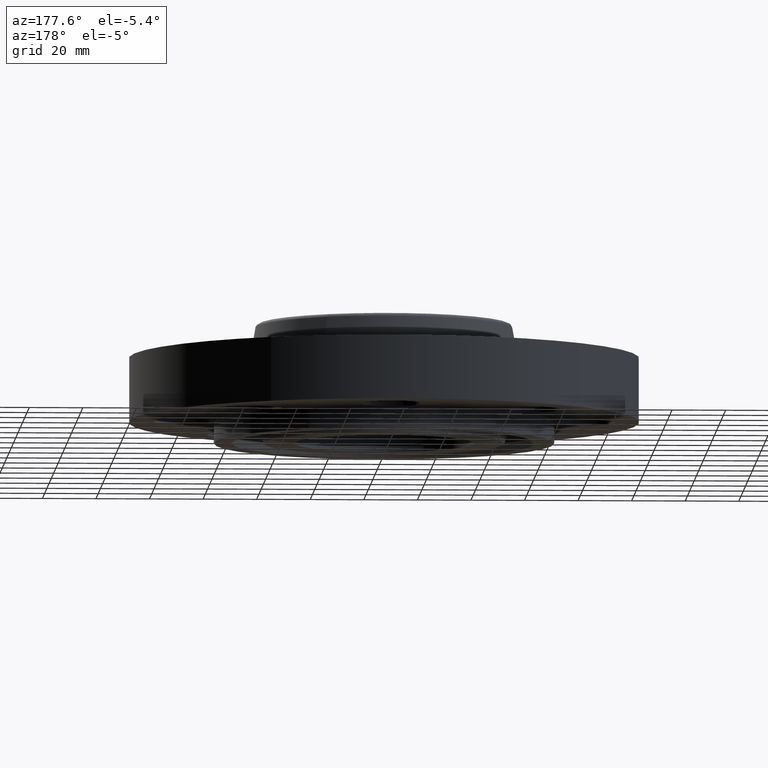
[diagram: clean part render]
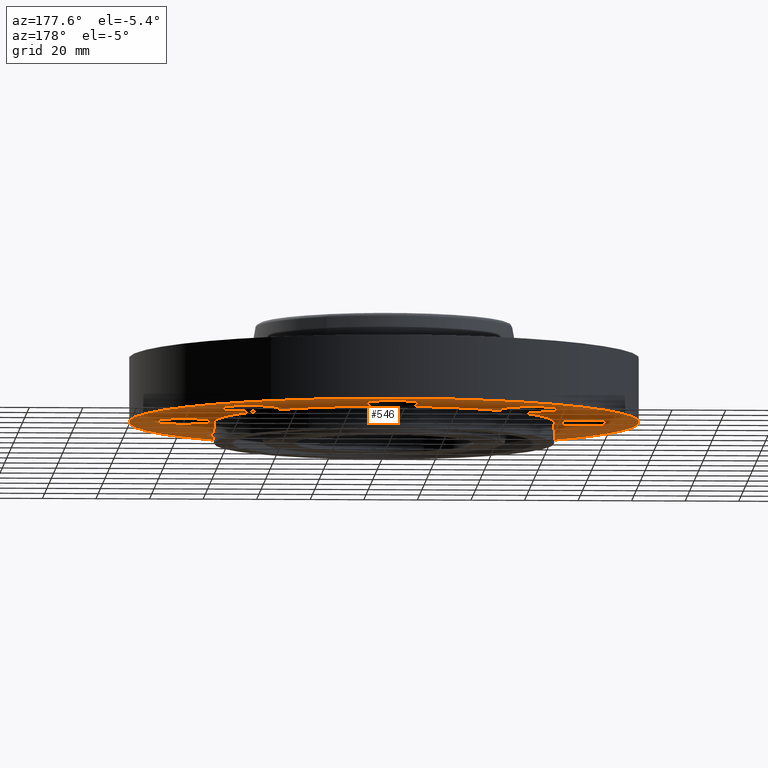
[diagram: same view with one face highlighted and labeled with its STEP entity id]
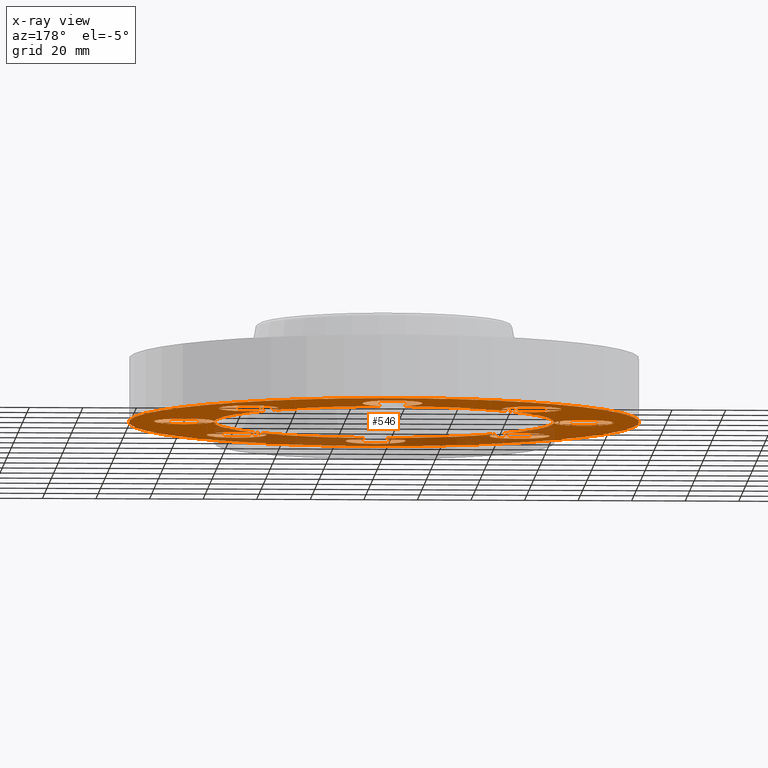
[diagram: x-ray of the same camera — body ghosted, the highlighted face saturated]
A machine part, auxiliary view. The second image highlights one B-rep face of the part: STEP entity #546.
The next image is the same camera in x-ray: the body ghosted, the highlighted face saturated — about 29% of this face is hidden behind the body in this view.
In plain terms, the highlighted planar face has unit normal (0, 0, -1).
Its self-contained STEP definition (entity closure, byte-faithful):
#242=AXIS2_PLACEMENT_3D('Circle Axis2P3D',#240,#241,$) ;
#249=AXIS2_PLACEMENT_3D('Circle Axis2P3D',#247,#248,$) ;
#256=AXIS2_PLACEMENT_3D('Circle Axis2P3D',#254,#255,$) ;
#263=AXIS2_PLACEMENT_3D('Circle Axis2P3D',#261,#262,$) ;
#270=AXIS2_PLACEMENT_3D('Circle Axis2P3D',#268,#269,$) ;
#293=AXIS2_PLACEMENT_3D('Circle Axis2P3D',#291,#292,$) ;
#300=AXIS2_PLACEMENT_3D('Circle Axis2P3D',#298,#299,$) ;
#307=AXIS2_PLACEMENT_3D('Circle Axis2P3D',#305,#306,$) ;
#314=AXIS2_PLACEMENT_3D('Circle Axis2P3D',#312,#313,$) ;
#321=AXIS2_PLACEMENT_3D('Circle Axis2P3D',#319,#320,$) ;
#338=AXIS2_PLACEMENT_3D('Plane Axis2P3D',#335,#336,#337) ;
#342=AXIS2_PLACEMENT_3D('Circle Axis2P3D',#340,#341,$) ;
#351=AXIS2_PLACEMENT_3D('Circle Axis2P3D',#349,#350,$) ;
#360=AXIS2_PLACEMENT_3D('Circle Axis2P3D',#358,#359,$) ;
#367=AXIS2_PLACEMENT_3D('Circle Axis2P3D',#365,#366,$) ;
#374=AXIS2_PLACEMENT_3D('Circle Axis2P3D',#372,#373,$) ;
#379=AXIS2_PLACEMENT_3D('Circle Axis2P3D',#377,#378,$) ;
#386=AXIS2_PLACEMENT_3D('Circle Axis2P3D',#384,#385,$) ;
#393=AXIS2_PLACEMENT_3D('Circle Axis2P3D',#391,#392,$) ;
#398=AXIS2_PLACEMENT_3D('Circle Axis2P3D',#396,#397,$) ;
#405=AXIS2_PLACEMENT_3D('Circle Axis2P3D',#403,#404,$) ;
#412=AXIS2_PLACEMENT_3D('Circle Axis2P3D',#410,#411,$) ;
#417=AXIS2_PLACEMENT_3D('Circle Axis2P3D',#415,#416,$) ;
#424=AXIS2_PLACEMENT_3D('Circle Axis2P3D',#422,#423,$) ;
#431=AXIS2_PLACEMENT_3D('Circle Axis2P3D',#429,#430,$) ;
#436=AXIS2_PLACEMENT_3D('Circle Axis2P3D',#434,#435,$) ;
#443=AXIS2_PLACEMENT_3D('Circle Axis2P3D',#441,#442,$) ;
#450=AXIS2_PLACEMENT_3D('Circle Axis2P3D',#448,#449,$) ;
#455=AXIS2_PLACEMENT_3D('Circle Axis2P3D',#453,#454,$) ;
#462=AXIS2_PLACEMENT_3D('Circle Axis2P3D',#460,#461,$) ;
#469=AXIS2_PLACEMENT_3D('Circle Axis2P3D',#467,#468,$) ;
#474=AXIS2_PLACEMENT_3D('Circle Axis2P3D',#472,#473,$) ;
#481=AXIS2_PLACEMENT_3D('Circle Axis2P3D',#479,#480,$) ;
#488=AXIS2_PLACEMENT_3D('Circle Axis2P3D',#486,#487,$) ;
#493=AXIS2_PLACEMENT_3D('Circle Axis2P3D',#491,#492,$) ;
#500=AXIS2_PLACEMENT_3D('Circle Axis2P3D',#498,#499,$) ;
#507=AXIS2_PLACEMENT_3D('Circle Axis2P3D',#505,#506,$) ;
#237=CARTESIAN_POINT('Vertex',(-1.19856384652,-2.19395640473,1.39870617276E-016)) ;
#240=CARTESIAN_POINT('Axis2P3D Location',(0.,0.,2.79741234551E-016)) ;
#244=CARTESIAN_POINT('Vertex',(-1.76776695297,-1.76776695297,0.)) ;
#247=CARTESIAN_POINT('Axis2P3D Location',(0.,0.,2.79741234551E-016)) ;
#251=CARTESIAN_POINT('Vertex',(-2.50000000001,-8.39223703654E-016,0.)) ;
#254=CARTESIAN_POINT('Axis2P3D Location',(0.,0.,2.79741234551E-016)) ;
#258=CARTESIAN_POINT('Vertex',(-1.76776695297,1.76776695297,0.)) ;
#261=CARTESIAN_POINT('Axis2P3D Location',(0.,0.,2.79741234551E-016)) ;
#265=CARTESIAN_POINT('Vertex',(7.81021824778E-015,2.50000000001,2.79741234551E-016)) ;
#268=CARTESIAN_POINT('Axis2P3D Location',(0.,0.,2.79741234551E-016)) ;
#272=CARTESIAN_POINT('Vertex',(1.19856384652,2.19395640473,1.39870617276E-016)) ;
#291=CARTESIAN_POINT('Axis2P3D Location',(0.,0.,2.79741234551E-016)) ;
#295=CARTESIAN_POINT('Vertex',(1.76776695297,1.76776695297,0.)) ;
#298=CARTESIAN_POINT('Axis2P3D Location',(0.,0.,2.79741234551E-016)) ;
#302=CARTESIAN_POINT('Vertex',(2.50000000001,2.79741234551E-016,0.)) ;
#305=CARTESIAN_POINT('Axis2P3D Location',(0.,0.,2.79741234551E-016)) ;
#309=CARTESIAN_POINT('Vertex',(1.76776695297,-1.76776695297,0.)) ;
#312=CARTESIAN_POINT('Axis2P3D Location',(0.,0.,2.79741234551E-016)) ;
#316=CARTESIAN_POINT('Vertex',(3.09971815926E-016,-2.50000000001,0.)) ;
#319=CARTESIAN_POINT('Axis2P3D Location',(0.,0.,2.79741234551E-016)) ;
#335=CARTESIAN_POINT('Axis2P3D Location',(0.,2.50000000001,0.)) ;
#340=CARTESIAN_POINT('Axis2P3D Location',(0.,0.,0.)) ;
#344=CARTESIAN_POINT('Vertex',(-1.79784576977,-3.2909346071,2.79741234551E-016)) ;
#346=CARTESIAN_POINT('Vertex',(1.79784576977,3.2909346071,2.79741234551E-016)) ;
#349=CARTESIAN_POINT('Axis2P3D Location',(0.,0.,0.)) ;
#358=CARTESIAN_POINT('Axis2P3D Location',(2.94000000001,0.,0.)) ;
#362=CARTESIAN_POINT('Vertex',(2.72905276303,-0.386136327233,0.)) ;
#365=CARTESIAN_POINT('Axis2P3D Location',(2.94000000001,-5.59482469102E-016,0.)) ;
#369=CARTESIAN_POINT('Vertex',(3.150947237,0.386136327233,0.)) ;
#372=CARTESIAN_POINT('Axis2P3D Location',(2.94000000001,0.,0.)) ;
#377=CARTESIAN_POINT('Axis2P3D Location',(2.0788939367,2.0788939367,0.)) ;
#381=CARTESIAN_POINT('Vertex',(2.2027713304,1.6566920995,0.)) ;
#384=CARTESIAN_POINT('Axis2P3D Location',(2.0788939367,2.0788939367,0.)) ;
#388=CARTESIAN_POINT('Vertex',(1.95501654299,2.50109577389,0.)) ;
#391=CARTESIAN_POINT('Axis2P3D Location',(2.0788939367,2.0788939367,0.)) ;
#396=CARTESIAN_POINT('Axis2P3D Location',(-8.74191357973E-017,2.94000000001,0.)) ;
#400=CARTESIAN_POINT('Vertex',(0.386136327233,2.72905276303,0.)) ;
#403=CARTESIAN_POINT('Axis2P3D Location',(8.74191357973E-017,2.94000000001,0.)) ;
#407=CARTESIAN_POINT('Vertex',(-0.386136327233,3.150947237,0.)) ;
#410=CARTESIAN_POINT('Axis2P3D Location',(-8.74191357973E-017,2.94000000001,0.)) ;
#415=CARTESIAN_POINT('Axis2P3D Location',(-2.0788939367,2.0788939367,0.)) ;
#419=CARTESIAN_POINT('Vertex',(-1.6566920995,2.2027713304,0.)) ;
#422=CARTESIAN_POINT('Axis2P3D Location',(-2.0788939367,2.0788939367,0.)) ;
#426=CARTESIAN_POINT('Vertex',(-2.50109577389,1.95501654299,0.)) ;
#429=CARTESIAN_POINT('Axis2P3D Location',(-2.0788939367,2.0788939367,0.)) ;
#434=CARTESIAN_POINT('Axis2P3D Location',(-2.94000000001,-5.59482469102E-016,0.)) ;
#438=CARTESIAN_POINT('Vertex',(-2.72905276303,0.386136327233,0.)) ;
#441=CARTESIAN_POINT('Axis2P3D Location',(-2.94000000001,-2.79741234551E-016,0.)) ;
#445=CARTESIAN_POINT('Vertex',(-3.150947237,-0.386136327233,0.)) ;
#448=CARTESIAN_POINT('Axis2P3D Location',(-2.94000000001,-5.59482469102E-016,0.)) ;
#453=CARTESIAN_POINT('Axis2P3D Location',(-2.0788939367,-2.0788939367,0.)) ;
#457=CARTESIAN_POINT('Vertex',(-2.2027713304,-1.6566920995,0.)) ;
#460=CARTESIAN_POINT('Axis2P3D Location',(-2.0788939367,-2.0788939367,0.)) ;
#464=CARTESIAN_POINT('Vertex',(-1.95501654299,-2.50109577389,0.)) ;
#467=CARTESIAN_POINT('Axis2P3D Location',(-2.0788939367,-2.0788939367,0.)) ;
#472=CARTESIAN_POINT('Axis2P3D Location',(0.,-2.94000000001,0.)) ;
#476=CARTESIAN_POINT('Vertex',(-0.386136327233,-2.72905276303,0.)) ;
#479=CARTESIAN_POINT('Axis2P3D Location',(-1.39870617276E-016,-2.94000000001,0.)) ;
#483=CARTESIAN_POINT('Vertex',(0.386136327233,-3.150947237,0.)) ;
#486=CARTESIAN_POINT('Axis2P3D Location',(0.,-2.94000000001,0.)) ;
#491=CARTESIAN_POINT('Axis2P3D Location',(2.0788939367,-2.0788939367,0.)) ;
#495=CARTESIAN_POINT('Vertex',(1.6566920995,-2.2027713304,0.)) ;
#498=CARTESIAN_POINT('Axis2P3D Location',(2.0788939367,-2.0788939367,0.)) ;
#502=CARTESIAN_POINT('Vertex',(2.50109577389,-1.95501654299,0.)) ;
#505=CARTESIAN_POINT('Axis2P3D Location',(2.0788939367,-2.0788939367,0.)) ;
#241=DIRECTION('Axis2P3D Direction',(0.,0.,-0.0393700787402)) ;
#248=DIRECTION('Axis2P3D Direction',(0.,0.,-0.0393700787402)) ;
#255=DIRECTION('Axis2P3D Direction',(0.,0.,-0.0393700787402)) ;
#262=DIRECTION('Axis2P3D Direction',(0.,0.,-0.0393700787402)) ;
#269=DIRECTION('Axis2P3D Direction',(0.,0.,-0.0393700787402)) ;
#292=DIRECTION('Axis2P3D Direction',(0.,0.,-0.0393700787402)) ;
#299=DIRECTION('Axis2P3D Direction',(0.,0.,-0.0393700787402)) ;
#306=DIRECTION('Axis2P3D Direction',(0.,0.,-0.0393700787402)) ;
#313=DIRECTION('Axis2P3D Direction',(0.,0.,-0.0393700787402)) ;
#320=DIRECTION('Axis2P3D Direction',(0.,0.,-0.0393700787402)) ;
#336=DIRECTION('Axis2P3D Direction',(0.,0.,-0.0393700787402)) ;
#337=DIRECTION('Axis2P3D XDirection',(0.0393700787402,0.,0.)) ;
#341=DIRECTION('Axis2P3D Direction',(0.,0.,-0.0393700787402)) ;
#350=DIRECTION('Axis2P3D Direction',(0.,0.,-0.0393700787402)) ;
#359=DIRECTION('Axis2P3D Direction',(0.,0.,-0.0393700787402)) ;
#366=DIRECTION('Axis2P3D Direction',(0.,0.,-0.0393700787402)) ;
#373=DIRECTION('Axis2P3D Direction',(0.,0.,-0.0393700787402)) ;
#378=DIRECTION('Axis2P3D Direction',(0.,0.,-0.0393700787402)) ;
#385=DIRECTION('Axis2P3D Direction',(0.,0.,-0.0393700787402)) ;
#392=DIRECTION('Axis2P3D Direction',(0.,0.,-0.0393700787402)) ;
#397=DIRECTION('Axis2P3D Direction',(0.,0.,-0.0393700787402)) ;
#404=DIRECTION('Axis2P3D Direction',(0.,0.,-0.0393700787402)) ;
#411=DIRECTION('Axis2P3D Direction',(0.,0.,-0.0393700787402)) ;
#416=DIRECTION('Axis2P3D Direction',(0.,0.,-0.0393700787402)) ;
#423=DIRECTION('Axis2P3D Direction',(0.,0.,-0.0393700787402)) ;
#430=DIRECTION('Axis2P3D Direction',(0.,0.,-0.0393700787402)) ;
#435=DIRECTION('Axis2P3D Direction',(0.,0.,-0.0393700787402)) ;
#442=DIRECTION('Axis2P3D Direction',(0.,0.,-0.0393700787402)) ;
#449=DIRECTION('Axis2P3D Direction',(0.,0.,-0.0393700787402)) ;
#454=DIRECTION('Axis2P3D Direction',(0.,0.,-0.0393700787402)) ;
#461=DIRECTION('Axis2P3D Direction',(0.,0.,-0.0393700787402)) ;
#468=DIRECTION('Axis2P3D Direction',(0.,0.,-0.0393700787402)) ;
#473=DIRECTION('Axis2P3D Direction',(0.,0.,-0.0393700787402)) ;
#480=DIRECTION('Axis2P3D Direction',(0.,0.,-0.0393700787402)) ;
#487=DIRECTION('Axis2P3D Direction',(0.,0.,-0.0393700787402)) ;
#492=DIRECTION('Axis2P3D Direction',(0.,0.,-0.0393700787402)) ;
#499=DIRECTION('Axis2P3D Direction',(0.,0.,-0.0393700787402)) ;
#506=DIRECTION('Axis2P3D Direction',(0.,0.,-0.0393700787402)) ;
#355=ORIENTED_EDGE('',*,*,#348,.T.) ;
#356=ORIENTED_EDGE('',*,*,#353,.T.) ;
#511=ORIENTED_EDGE('',*,*,#364,.F.) ;
#512=ORIENTED_EDGE('',*,*,#371,.F.) ;
#513=ORIENTED_EDGE('',*,*,#376,.F.) ;
#514=ORIENTED_EDGE('',*,*,#304,.F.) ;
#515=ORIENTED_EDGE('',*,*,#383,.F.) ;
#516=ORIENTED_EDGE('',*,*,#390,.F.) ;
#517=ORIENTED_EDGE('',*,*,#395,.F.) ;
#518=ORIENTED_EDGE('',*,*,#297,.F.) ;
#519=ORIENTED_EDGE('',*,*,#274,.F.) ;
#520=ORIENTED_EDGE('',*,*,#402,.F.) ;
#521=ORIENTED_EDGE('',*,*,#409,.F.) ;
#522=ORIENTED_EDGE('',*,*,#414,.F.) ;
#523=ORIENTED_EDGE('',*,*,#267,.F.) ;
#524=ORIENTED_EDGE('',*,*,#421,.F.) ;
#525=ORIENTED_EDGE('',*,*,#428,.F.) ;
#526=ORIENTED_EDGE('',*,*,#433,.F.) ;
#527=ORIENTED_EDGE('',*,*,#260,.F.) ;
#528=ORIENTED_EDGE('',*,*,#440,.F.) ;
#529=ORIENTED_EDGE('',*,*,#447,.F.) ;
#530=ORIENTED_EDGE('',*,*,#452,.F.) ;
#531=ORIENTED_EDGE('',*,*,#253,.F.) ;
#532=ORIENTED_EDGE('',*,*,#459,.F.) ;
#533=ORIENTED_EDGE('',*,*,#466,.F.) ;
#534=ORIENTED_EDGE('',*,*,#471,.F.) ;
#535=ORIENTED_EDGE('',*,*,#246,.F.) ;
#536=ORIENTED_EDGE('',*,*,#323,.F.) ;
#537=ORIENTED_EDGE('',*,*,#478,.F.) ;
#538=ORIENTED_EDGE('',*,*,#485,.F.) ;
#539=ORIENTED_EDGE('',*,*,#490,.F.) ;
#540=ORIENTED_EDGE('',*,*,#318,.F.) ;
#541=ORIENTED_EDGE('',*,*,#497,.F.) ;
#542=ORIENTED_EDGE('',*,*,#504,.F.) ;
#543=ORIENTED_EDGE('',*,*,#509,.F.) ;
#544=ORIENTED_EDGE('',*,*,#311,.F.) ;
#545=FACE_BOUND('',#510,.T.) ;
#546=ADVANCED_FACE('PartBody',(#357,#545),#339,.T.) ;
#243=CIRCLE('generated circle',#242,2.50000000001) ;
#250=CIRCLE('generated circle',#249,2.50000000001) ;
#257=CIRCLE('generated circle',#256,2.50000000001) ;
#264=CIRCLE('generated circle',#263,2.50000000001) ;
#271=CIRCLE('generated circle',#270,2.50000000001) ;
#294=CIRCLE('generated circle',#293,2.50000000001) ;
#301=CIRCLE('generated circle',#300,2.50000000001) ;
#308=CIRCLE('generated circle',#307,2.50000000001) ;
#315=CIRCLE('generated circle',#314,2.50000000001) ;
#322=CIRCLE('generated circle',#321,2.50000000001) ;
#343=CIRCLE('generated circle',#342,3.75000000002) ;
#352=CIRCLE('generated circle',#351,3.75000000002) ;
#361=CIRCLE('generated circle',#360,0.440000000002) ;
#368=CIRCLE('generated circle',#367,0.440000000002) ;
#375=CIRCLE('generated circle',#374,0.440000000002) ;
#380=CIRCLE('generated circle',#379,0.440000000002) ;
#387=CIRCLE('generated circle',#386,0.440000000002) ;
#394=CIRCLE('generated circle',#393,0.440000000002) ;
#399=CIRCLE('generated circle',#398,0.440000000002) ;
#406=CIRCLE('generated circle',#405,0.440000000002) ;
#413=CIRCLE('generated circle',#412,0.440000000002) ;
#418=CIRCLE('generated circle',#417,0.440000000002) ;
#425=CIRCLE('generated circle',#424,0.440000000002) ;
#432=CIRCLE('generated circle',#431,0.440000000002) ;
#437=CIRCLE('generated circle',#436,0.440000000002) ;
#444=CIRCLE('generated circle',#443,0.440000000002) ;
#451=CIRCLE('generated circle',#450,0.440000000002) ;
#456=CIRCLE('generated circle',#455,0.440000000002) ;
#463=CIRCLE('generated circle',#462,0.440000000002) ;
#470=CIRCLE('generated circle',#469,0.440000000002) ;
#475=CIRCLE('generated circle',#474,0.440000000002) ;
#482=CIRCLE('generated circle',#481,0.440000000002) ;
#489=CIRCLE('generated circle',#488,0.440000000002) ;
#494=CIRCLE('generated circle',#493,0.440000000002) ;
#501=CIRCLE('generated circle',#500,0.440000000002) ;
#508=CIRCLE('generated circle',#507,0.440000000002) ;
#246=EDGE_CURVE('',#238,#245,#243,.T.) ;
#253=EDGE_CURVE('',#245,#252,#250,.T.) ;
#260=EDGE_CURVE('',#252,#259,#257,.T.) ;
#267=EDGE_CURVE('',#259,#266,#264,.T.) ;
#274=EDGE_CURVE('',#266,#273,#271,.T.) ;
#297=EDGE_CURVE('',#273,#296,#294,.T.) ;
#304=EDGE_CURVE('',#296,#303,#301,.T.) ;
#311=EDGE_CURVE('',#303,#310,#308,.T.) ;
#318=EDGE_CURVE('',#310,#317,#315,.T.) ;
#323=EDGE_CURVE('',#317,#238,#322,.T.) ;
#348=EDGE_CURVE('',#345,#347,#343,.T.) ;
#353=EDGE_CURVE('',#347,#345,#352,.T.) ;
#364=EDGE_CURVE('',#363,#303,#361,.T.) ;
#371=EDGE_CURVE('',#370,#363,#368,.T.) ;
#376=EDGE_CURVE('',#303,#370,#375,.T.) ;
#383=EDGE_CURVE('',#382,#296,#380,.T.) ;
#390=EDGE_CURVE('',#389,#382,#387,.T.) ;
#395=EDGE_CURVE('',#296,#389,#394,.T.) ;
#402=EDGE_CURVE('',#401,#266,#399,.T.) ;
#409=EDGE_CURVE('',#408,#401,#406,.T.) ;
#414=EDGE_CURVE('',#266,#408,#413,.T.) ;
#421=EDGE_CURVE('',#420,#259,#418,.T.) ;
#428=EDGE_CURVE('',#427,#420,#425,.T.) ;
#433=EDGE_CURVE('',#259,#427,#432,.T.) ;
#440=EDGE_CURVE('',#439,#252,#437,.T.) ;
#447=EDGE_CURVE('',#446,#439,#444,.T.) ;
#452=EDGE_CURVE('',#252,#446,#451,.T.) ;
#459=EDGE_CURVE('',#458,#245,#456,.T.) ;
#466=EDGE_CURVE('',#465,#458,#463,.T.) ;
#471=EDGE_CURVE('',#245,#465,#470,.T.) ;
#478=EDGE_CURVE('',#477,#317,#475,.T.) ;
#485=EDGE_CURVE('',#484,#477,#482,.T.) ;
#490=EDGE_CURVE('',#317,#484,#489,.T.) ;
#497=EDGE_CURVE('',#496,#310,#494,.T.) ;
#504=EDGE_CURVE('',#503,#496,#501,.T.) ;
#509=EDGE_CURVE('',#310,#503,#508,.T.) ;
#354=EDGE_LOOP('',(#355,#356)) ;
#510=EDGE_LOOP('',(#511,#512,#513,#514,#515,#516,#517,#518,#519,#520,#521,#522,#523,#524,#525,#526,#527,#528,#529,#530,#531,#532,#533,#534,#535,#536,#537,#538,#539,#540,#541,#542,#543,#544)) ;
#357=FACE_OUTER_BOUND('',#354,.T.) ;
#339=PLANE('',#338) ;
#238=VERTEX_POINT('',#237) ;
#245=VERTEX_POINT('',#244) ;
#252=VERTEX_POINT('',#251) ;
#259=VERTEX_POINT('',#258) ;
#266=VERTEX_POINT('',#265) ;
#273=VERTEX_POINT('',#272) ;
#296=VERTEX_POINT('',#295) ;
#303=VERTEX_POINT('',#302) ;
#310=VERTEX_POINT('',#309) ;
#317=VERTEX_POINT('',#316) ;
#345=VERTEX_POINT('',#344) ;
#347=VERTEX_POINT('',#346) ;
#363=VERTEX_POINT('',#362) ;
#370=VERTEX_POINT('',#369) ;
#382=VERTEX_POINT('',#381) ;
#389=VERTEX_POINT('',#388) ;
#401=VERTEX_POINT('',#400) ;
#408=VERTEX_POINT('',#407) ;
#420=VERTEX_POINT('',#419) ;
#427=VERTEX_POINT('',#426) ;
#439=VERTEX_POINT('',#438) ;
#446=VERTEX_POINT('',#445) ;
#458=VERTEX_POINT('',#457) ;
#465=VERTEX_POINT('',#464) ;
#477=VERTEX_POINT('',#476) ;
#484=VERTEX_POINT('',#483) ;
#496=VERTEX_POINT('',#495) ;
#503=VERTEX_POINT('',#502) ;